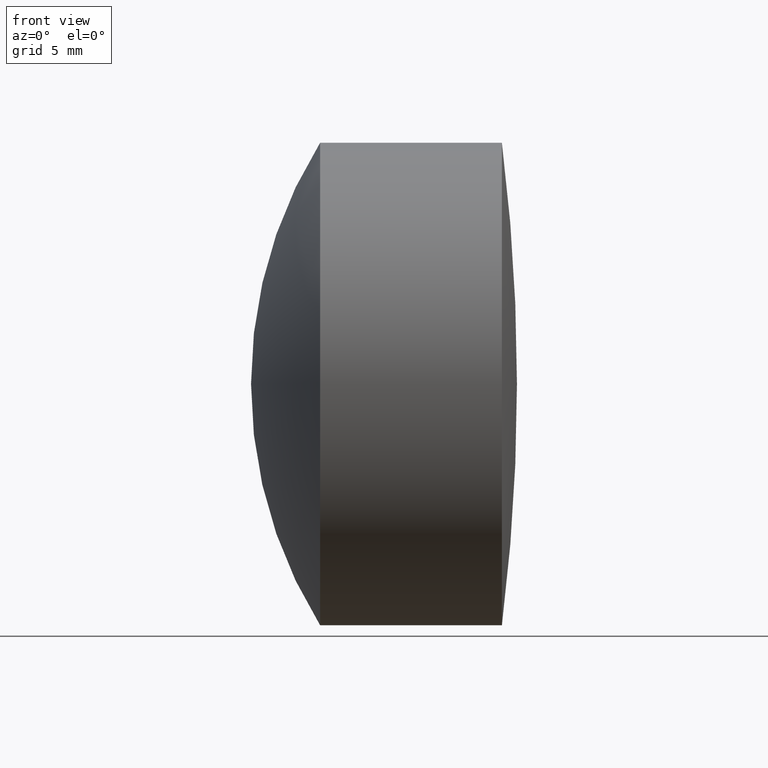
[diagram: clean part render]
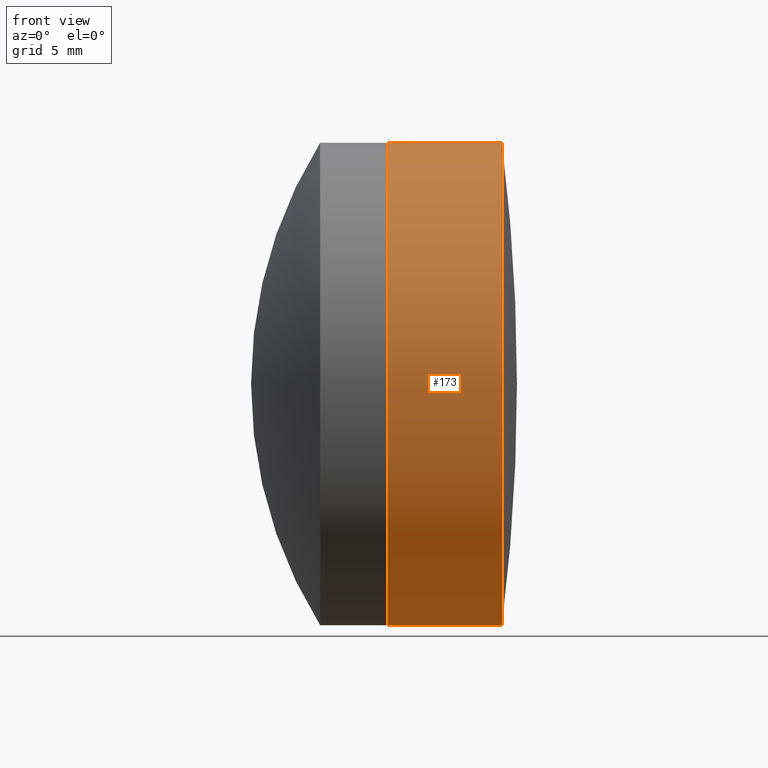
[diagram: same view with one face highlighted and labeled with its STEP entity id]
A machine part, front view. The second image highlights one B-rep face of the part: STEP entity #173.
In plain terms, the highlighted cylindrical surface (partial cylindrical patch) has radius 12.7 mm, axis along (-1, -0, -0).
Its self-contained STEP definition (entity closure, byte-faithful):
#15 = CIRCLE ( 'NONE', #157, 12.69999999999998200 ) ;
#17 = DIRECTION ( 'NONE',  ( -1.000000000000000000, -0.0000000000000000000, -0.0000000000000000000 ) ) ;
#19 = CYLINDRICAL_SURFACE ( 'NONE', #255, 12.69999999999998200 ) ;
#31 = DIRECTION ( 'NONE',  ( -1.000000000000000000, -0.0000000000000000000, -0.0000000000000000000 ) ) ;
#44 = DIRECTION ( 'NONE',  ( -1.000000000000000000, -0.0000000000000000000, -0.0000000000000000000 ) ) ;
#53 = CARTESIAN_POINT ( 'NONE',  ( 228.4492212547630700, 1.555301434917136500E-015, -12.69999999999998200 ) ) ;
#70 = VERTEX_POINT ( 'NONE', #269 ) ;
#92 = CIRCLE ( 'NONE', #118, 12.69999999999998200 ) ;
#111 = CARTESIAN_POINT ( 'NONE',  ( 228.4492212547630700, 0.0000000000000000000, 0.0000000000000000000 ) ) ;
#112 = DIRECTION ( 'NONE',  ( 0.0000000000000000000, 0.0000000000000000000, 1.000000000000000000 ) ) ;
#113 = ORIENTED_EDGE ( 'NONE', *, *, #122, .F. ) ;
#115 = ORIENTED_EDGE ( 'NONE', *, *, #208, .T. ) ;
#118 = AXIS2_PLACEMENT_3D ( 'NONE', #197, #31, #112 ) ;
#122 = EDGE_CURVE ( 'NONE', #284, #195, #193, .T. ) ;
#133 = ORIENTED_EDGE ( 'NONE', *, *, #201, .T. ) ;
#140 = LINE ( 'NONE', #324, #167 ) ;
#157 = AXIS2_PLACEMENT_3D ( 'NONE', #111, #301, #344 ) ;
#167 = VECTOR ( 'NONE', #346, 1000.000000000000000 ) ;
#173 = ADVANCED_FACE ( 'NONE', ( #259 ), #19, .T. ) ;
#177 = VERTEX_POINT ( 'NONE', #333 ) ;
#191 = EDGE_CURVE ( 'NONE', #195, #70, #92, .T. ) ;
#193 = LINE ( 'NONE', #315, #341 ) ;
#195 = VERTEX_POINT ( 'NONE', #320 ) ;
#197 = CARTESIAN_POINT ( 'NONE',  ( 222.4082068579018300, 0.0000000000000000000, 0.0000000000000000000 ) ) ;
#201 = EDGE_CURVE ( 'NONE', #284, #177, #15, .T. ) ;
#208 = EDGE_CURVE ( 'NONE', #177, #70, #140, .T. ) ;
#214 = CARTESIAN_POINT ( 'NONE',  ( -0.5519199926577972300, 0.0000000000000000000, 0.0000000000000000000 ) ) ;
#235 = ORIENTED_EDGE ( 'NONE', *, *, #191, .F. ) ;
#255 = AXIS2_PLACEMENT_3D ( 'NONE', #214, #44, #287 ) ;
#259 = FACE_OUTER_BOUND ( 'NONE', #263, .T. ) ;
#263 = EDGE_LOOP ( 'NONE', ( #113, #133, #115, #235 ) ) ;
#269 = CARTESIAN_POINT ( 'NONE',  ( 222.4082068579018300, 0.0000000000000000000, 12.69999999999998200 ) ) ;
#284 = VERTEX_POINT ( 'NONE', #53 ) ;
#287 = DIRECTION ( 'NONE',  ( 0.0000000000000000000, 0.0000000000000000000, 1.000000000000000000 ) ) ;
#301 = DIRECTION ( 'NONE',  ( -1.000000000000000000, -0.0000000000000000000, -0.0000000000000000000 ) ) ;
#315 = CARTESIAN_POINT ( 'NONE',  ( -0.5519199926577972300, 1.555301434917136500E-015, -12.69999999999998200 ) ) ;
#320 = CARTESIAN_POINT ( 'NONE',  ( 222.4082068579018300, 1.555301434917136700E-015, -12.69999999999998200 ) ) ;
#324 = CARTESIAN_POINT ( 'NONE',  ( -0.5519199926577972300, 0.0000000000000000000, 12.69999999999998200 ) ) ;
#333 = CARTESIAN_POINT ( 'NONE',  ( 228.4492212547630700, 0.0000000000000000000, 12.69999999999998200 ) ) ;
#341 = VECTOR ( 'NONE', #17, 1000.000000000000000 ) ;
#344 = DIRECTION ( 'NONE',  ( 0.0000000000000000000, 0.0000000000000000000, 1.000000000000000000 ) ) ;
#346 = DIRECTION ( 'NONE',  ( -1.000000000000000000, -0.0000000000000000000, -0.0000000000000000000 ) ) ;